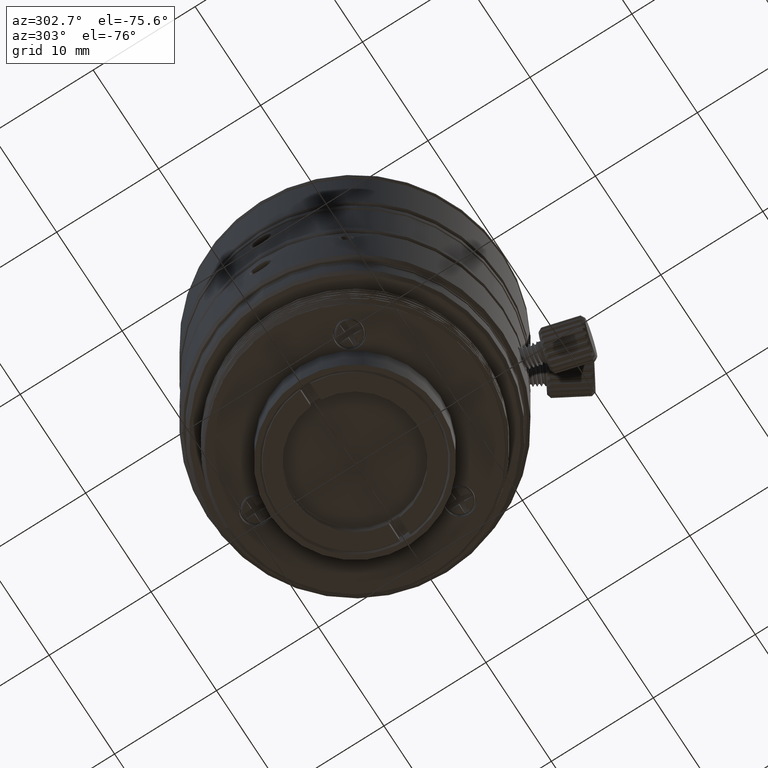
[diagram: clean part render]
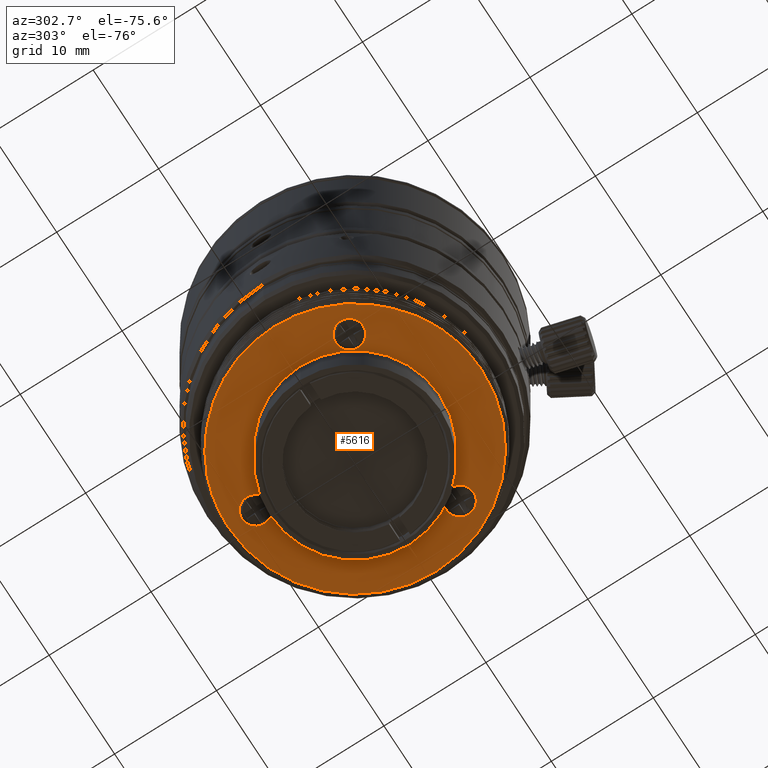
[diagram: same view with one face highlighted and labeled with its STEP entity id]
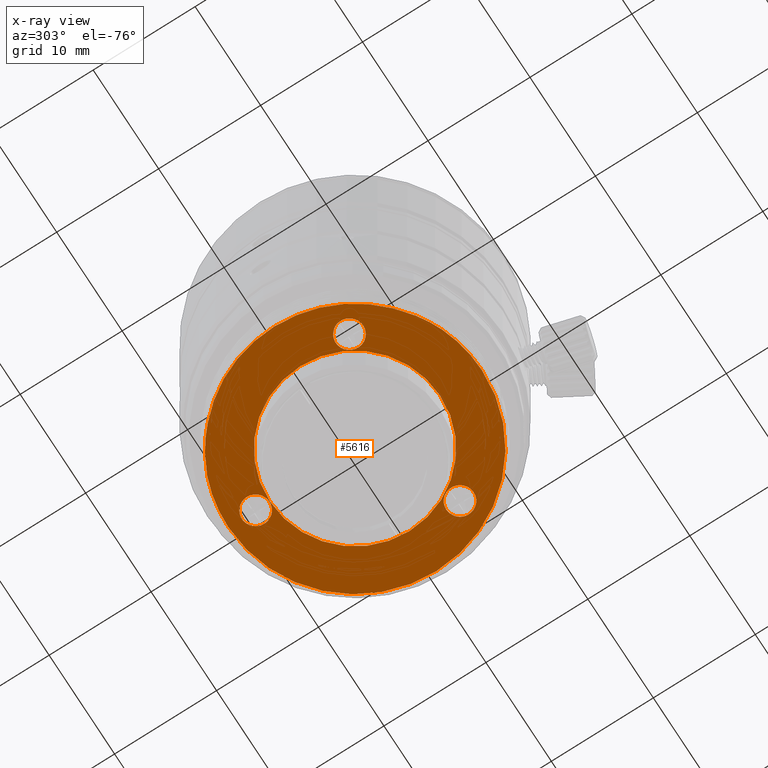
[diagram: x-ray of the same camera — body ghosted, the highlighted face saturated]
A machine part, auxiliary view. The second image highlights one B-rep face of the part: STEP entity #5616.
The next image is the same camera in x-ray: the body ghosted, the highlighted face saturated — about 0% of this face is hidden behind the body in this view.
In plain terms, the highlighted planar face has unit normal (0, 0, 1).
Its self-contained STEP definition (entity closure, byte-faithful):
#320 = DIRECTION ( 'NONE',  ( 0.5000000000000167644, 0.8660254037844289376, 0.000000000000000000 ) ) ;
#605 = ORIENTED_EDGE ( 'NONE', *, *, #18227, .F. ) ;
#644 = CIRCLE ( 'NONE', #19669, 12.42500000000000071 ) ;
#664 = ORIENTED_EDGE ( 'NONE', *, *, #10624, .F. ) ;
#704 = CARTESIAN_POINT ( 'NONE',  ( 8.443747686897999927, -4.875000000000000000, -1.500000018669999990 ) ) ;
#980 = CARTESIAN_POINT ( 'NONE',  ( 0.000000000000000000, 8.349999677741001491, -1.500000018669999990 ) ) ;
#1167 = VERTEX_POINT ( 'NONE', #10451 ) ;
#1225 = CARTESIAN_POINT ( 'NONE',  ( -1.521623647973570158E-15, -12.42500000026933371, -1.500000018669999990 ) ) ;
#1268 = CARTESIAN_POINT ( 'NONE',  ( 0.000000000000000000, 0.000000000000000000, -1.500000018669999990 ) ) ;
#1453 = DIRECTION ( 'NONE',  ( 0.000000000000000000, 0.000000000000000000, -1.000000000000000000 ) ) ;
#1475 = EDGE_CURVE ( 'NONE', #31185, #17797, #37323, .T. ) ;
#1562 = ORIENTED_EDGE ( 'NONE', *, *, #31170, .T. ) ;
#1649 = DIRECTION ( 'NONE',  ( 1.000000000000000000, 0.000000000000000000, 0.000000000000000000 ) ) ;
#2022 = DIRECTION ( 'NONE',  ( 0.000000000000000000, 0.000000000000000000, -1.000000000000000000 ) ) ;
#2361 = CARTESIAN_POINT ( 'NONE',  ( -6.009870152725436121, 10.94988895888564784, -1.500000018670001989 ) ) ;
#2370 = CARTESIAN_POINT ( 'NONE',  ( 0.000000000000000000, 9.750000000000000000, -1.500000018669999990 ) ) ;
#2601 = ORIENTED_EDGE ( 'NONE', *, *, #17564, .F. ) ;
#2766 = CARTESIAN_POINT ( 'NONE',  ( -6.004013329715740532, -10.95235141863349959, -1.500000018669999990 ) ) ;
#3667 = VERTEX_POINT ( 'NONE', #21168 ) ;
#3702 = FACE_BOUND ( 'NONE', #22171, .T. ) ;
#3742 = CARTESIAN_POINT ( 'NONE',  ( -4.625970705404580663, 11.53173967936930211, -1.500000018669999990 ) ) ;
#4352 = VERTEX_POINT ( 'NONE', #7866 ) ;
#4376 = EDGE_LOOP ( 'NONE', ( #31159, #27160 ) ) ;
#4531 = CIRCLE ( 'NONE', #31555, 1.350000000000000089 ) ;
#4985 = CARTESIAN_POINT ( 'NONE',  ( 0.000000000000000000, 9.750000000000000000, -1.500000018669999990 ) ) ;
#5035 = DIRECTION ( 'NONE',  ( 0.000000000000000000, 0.000000000000000000, -1.000000000000000000 ) ) ;
#5298 = CIRCLE ( 'NONE', #31756, 1.350000000000000311 ) ;
#5616 = ADVANCED_FACE ( 'NONE', ( #13084, #13282, #3702, #21196, #7318 ), #24822, .F. ) ;
#5652 = CARTESIAN_POINT ( 'NONE',  ( -4.625970705424220064, -11.53173967936130140, -1.500000018669999990 ) ) ;
#6004 = DIRECTION ( 'NONE',  ( 0.000000000000000000, 0.000000000000000000, -1.000000000000000000 ) ) ;
#6340 = CARTESIAN_POINT ( 'NONE',  ( -4.625970705424220064, -11.53173967936130140, -1.500000018669999990 ) ) ;
#6360 = CIRCLE ( 'NONE', #24795, 8.349999677741001491 ) ;
#6454 = DIRECTION ( 'NONE',  ( -1.000000000000000000, 0.000000000000000000, 0.000000000000000000 ) ) ;
#6518 = VERTEX_POINT ( 'NONE', #11552 ) ;
#7023 = CIRCLE ( 'NONE', #15529, 12.34999999999999964 ) ;
#7318 = FACE_OUTER_BOUND ( 'NONE', #18061, .T. ) ;
#7866 = CARTESIAN_POINT ( 'NONE',  ( 8.349999677741001491, 0.000000000000000000, -1.500000018669999990 ) ) ;
#8110 = VERTEX_POINT ( 'NONE', #9905 ) ;
#8216 = AXIS2_PLACEMENT_3D ( 'NONE', #10560, #33990, #16532 ) ;
#8368 = CIRCLE ( 'NONE', #18206, 1.350000000000000089 ) ;
#8520 = AXIS2_PLACEMENT_3D ( 'NONE', #22523, #5035, #28683 ) ;
#8996 = EDGE_CURVE ( 'NONE', #22974, #4352, #37160, .T. ) ;
#9171 = ORIENTED_EDGE ( 'NONE', *, *, #36121, .F. ) ;
#9865 = ORIENTED_EDGE ( 'NONE', *, *, #24117, .F. ) ;
#9905 = CARTESIAN_POINT ( 'NONE',  ( 0.000000000000000000, 12.42500000026933371, -1.500000018669999990 ) ) ;
#10451 = CARTESIAN_POINT ( 'NONE',  ( -9.118747686898021954, -3.705865704891020407, -1.500000018669999990 ) ) ;
#10560 = CARTESIAN_POINT ( 'NONE',  ( -8.443747686897999927, -4.875000000000000000, -1.500000018669999990 ) ) ;
#10624 = EDGE_CURVE ( 'NONE', #1167, #3667, #5298, .T. ) ;
#11252 = CARTESIAN_POINT ( 'NONE',  ( 8.443747686897999927, -4.875000000000000000, -1.500000018669999990 ) ) ;
#11427 = CARTESIAN_POINT ( 'NONE',  ( -7.277528754593929783, -10.11986897459639856, -1.500000018669999990 ) ) ;
#11537 = CARTESIAN_POINT ( 'NONE',  ( 0.000000000000000000, 0.000000000000000000, -1.500000018669999990 ) ) ;
#11552 = CARTESIAN_POINT ( 'NONE',  ( -1.350000000000000089, 9.750000000000000000, -1.500000018669999990 ) ) ;
#11671 = AXIS2_PLACEMENT_3D ( 'NONE', #704, #15136, #320 ) ;
#12181 = CARTESIAN_POINT ( 'NONE',  ( -8.363606865783218325, -9.086945592146809858, -1.500000018669999990 ) ) ;
#13084 = FACE_BOUND ( 'NONE', #34186, .T. ) ;
#13282 = FACE_BOUND ( 'NONE', #34232, .T. ) ;
#13856 = CIRCLE ( 'NONE', #37752, 1.350000000000000311 ) ;
#14081 = CARTESIAN_POINT ( 'NONE',  ( -7.282329570120652740, 10.11530312012851951, -1.500000018670001323 ) ) ;
#14332 = ORIENTED_EDGE ( 'NONE', *, *, #29731, .T. ) ;
#14378 = DIRECTION ( 'NONE',  ( 0.000000000000000000, 0.000000000000000000, -1.000000000000000000 ) ) ;
#14591 = VERTEX_POINT ( 'NONE', #32491 ) ;
#14855 = EDGE_CURVE ( 'NONE', #14591, #6518, #8368, .T. ) ;
#15136 = DIRECTION ( 'NONE',  ( 0.000000000000000000, 0.000000000000000000, -1.000000000000000000 ) ) ;
#15529 = AXIS2_PLACEMENT_3D ( 'NONE', #17187, #31374, #22551 ) ;
#15601 = DIRECTION ( 'NONE',  ( 1.000000000000000000, 0.000000000000000000, 0.000000000000000000 ) ) ;
#15846 = CARTESIAN_POINT ( 'NONE',  ( 0.000000000000000000, 0.000000000000000000, -1.500000018669999990 ) ) ;
#16532 = DIRECTION ( 'NONE',  ( 0.5000000000000167644, -0.8660254037844289376, 0.000000000000000000 ) ) ;
#17187 = CARTESIAN_POINT ( 'NONE',  ( 0.000000000000000000, 0.000000000000000000, -1.500000018669999990 ) ) ;
#17312 = CARTESIAN_POINT ( 'NONE',  ( 9.118747686898021954, -3.705865704891020851, -1.500000018669999990 ) ) ;
#17564 = EDGE_CURVE ( 'NONE', #30357, #17797, #35494, .T. ) ;
#17659 = DIRECTION ( 'NONE',  ( 0.5000000000000167644, -0.8660254037844289376, 0.000000000000000000 ) ) ;
#17797 = VERTEX_POINT ( 'NONE', #6340 ) ;
#18061 = EDGE_LOOP ( 'NONE', ( #9865, #18589, #33573, #21252, #2601, #1562, #14332 ) ) ;
#18206 = AXIS2_PLACEMENT_3D ( 'NONE', #4985, #22667, #31491 ) ;
#18227 = EDGE_CURVE ( 'NONE', #34898, #35324, #34360, .T. ) ;
#18317 = DIRECTION ( 'NONE',  ( 0.000000000000000000, 0.000000000000000000, -1.000000000000000000 ) ) ;
#18322 = CARTESIAN_POINT ( 'NONE',  ( -12.34999999999999964, 1.512438796946981289E-15, -1.500000018669999990 ) ) ;
#18489 = EDGE_CURVE ( 'NONE', #8110, #31185, #644, .T. ) ;
#18589 = ORIENTED_EDGE ( 'NONE', *, *, #35523, .T. ) ;
#19138 = CARTESIAN_POINT ( 'NONE',  ( 7.768747686897977012, -6.044134295108979593, -1.500000018669999990 ) ) ;
#19669 = AXIS2_PLACEMENT_3D ( 'NONE', #1268, #1453, #1649 ) ;
#19861 = DIRECTION ( 'NONE',  ( -1.000000000000000000, 0.000000000000000000, 0.000000000000000000 ) ) ;
#20598 = AXIS2_PLACEMENT_3D ( 'NONE', #11537, #32067, #35698 ) ;
#21168 = CARTESIAN_POINT ( 'NONE',  ( -7.768747686897977012, -6.044134295108979593, -1.500000018669999990 ) ) ;
#21196 = FACE_BOUND ( 'NONE', #4376, .T. ) ;
#21252 = ORIENTED_EDGE ( 'NONE', *, *, #1475, .T. ) ;
#22171 = EDGE_LOOP ( 'NONE', ( #605, #9171 ) ) ;
#22523 = CARTESIAN_POINT ( 'NONE',  ( 0.000000000000000000, 0.000000000000000000, -1.500000018669999990 ) ) ;
#22529 = ORIENTED_EDGE ( 'NONE', *, *, #26989, .F. ) ;
#22551 = DIRECTION ( 'NONE',  ( 1.000000000000000000, 0.000000000000000000, 0.000000000000000000 ) ) ;
#22667 = DIRECTION ( 'NONE',  ( 0.000000000000000000, 0.000000000000000000, -1.000000000000000000 ) ) ;
#22704 = DIRECTION ( 'NONE',  ( 1.000000000000000000, 0.000000000000000000, 0.000000000000000000 ) ) ;
#22974 = VERTEX_POINT ( 'NONE', #32303 ) ;
#23032 = CARTESIAN_POINT ( 'NONE',  ( -8.443747686897999927, -4.875000000000000000, -1.500000018669999990 ) ) ;
#23582 = CIRCLE ( 'NONE', #8216, 1.350000000000000311 ) ;
#24117 = EDGE_CURVE ( 'NONE', #29260, #36332, #25316, .T. ) ;
#24291 = EDGE_CURVE ( 'NONE', #4352, #22974, #6360, .T. ) ;
#24795 = AXIS2_PLACEMENT_3D ( 'NONE', #33237, #18317, #29816 ) ;
#24822 = PLANE ( 'NONE',  #27457 ) ;
#25070 = EDGE_CURVE ( 'NONE', #6518, #14591, #4531, .T. ) ;
#25316 = B_SPLINE_CURVE_WITH_KNOTS ( 'NONE', 3,
 ( #25820, #2361, #14081, #34612 ),
 .UNSPECIFIED., .F., .F.,
 ( 4, 4 ),
 ( 0.000000000000000000, 1.000000000000000000 ),
 .UNSPECIFIED. ) ;
#25820 = CARTESIAN_POINT ( 'NONE',  ( -4.625970705404580663, 11.53173967936930211, -1.500000018669999990 ) ) ;
#26824 = VERTEX_POINT ( 'NONE', #18322 ) ;
#26989 = EDGE_CURVE ( 'NONE', #3667, #1167, #23582, .T. ) ;
#27160 = ORIENTED_EDGE ( 'NONE', *, *, #25070, .F. ) ;
#27457 = AXIS2_PLACEMENT_3D ( 'NONE', #980, #36497, #15601 ) ;
#27570 = DIRECTION ( 'NONE',  ( 0.000000000000000000, 0.000000000000000000, -1.000000000000000000 ) ) ;
#27879 = AXIS2_PLACEMENT_3D ( 'NONE', #15846, #27570, #22704 ) ;
#28551 = DIRECTION ( 'NONE',  ( 0.5000000000000167644, 0.8660254037844289376, 0.000000000000000000 ) ) ;
#28683 = DIRECTION ( 'NONE',  ( 1.000000000000000000, 0.000000000000000000, 0.000000000000000000 ) ) ;
#29074 = ORIENTED_EDGE ( 'NONE', *, *, #8996, .F. ) ;
#29260 = VERTEX_POINT ( 'NONE', #3742 ) ;
#29731 = EDGE_CURVE ( 'NONE', #26824, #36332, #7023, .T. ) ;
#29763 = CIRCLE ( 'NONE', #20598, 12.42500000000000071 ) ;
#29816 = DIRECTION ( 'NONE',  ( -1.000000000000000000, 0.000000000000000000, 0.000000000000000000 ) ) ;
#30085 = DIRECTION ( 'NONE',  ( 0.000000000000000000, 0.000000000000000000, -1.000000000000000000 ) ) ;
#30357 = VERTEX_POINT ( 'NONE', #35908 ) ;
#31159 = ORIENTED_EDGE ( 'NONE', *, *, #14855, .F. ) ;
#31170 = EDGE_CURVE ( 'NONE', #30357, #26824, #32141, .T. ) ;
#31185 = VERTEX_POINT ( 'NONE', #1225 ) ;
#31374 = DIRECTION ( 'NONE',  ( 0.000000000000000000, 0.000000000000000000, -1.000000000000000000 ) ) ;
#31491 = DIRECTION ( 'NONE',  ( -1.000000000000000000, 0.000000000000000000, 0.000000000000000000 ) ) ;
#31555 = AXIS2_PLACEMENT_3D ( 'NONE', #2370, #6004, #19861 ) ;
#31756 = AXIS2_PLACEMENT_3D ( 'NONE', #23032, #14378, #17659 ) ;
#32067 = DIRECTION ( 'NONE',  ( 0.000000000000000000, 0.000000000000000000, -1.000000000000000000 ) ) ;
#32132 = CARTESIAN_POINT ( 'NONE',  ( -8.363606865847119209, 9.086945592087040779, -1.500000018669999990 ) ) ;
#32141 = CIRCLE ( 'NONE', #27879, 12.34999999999999964 ) ;
#32303 = CARTESIAN_POINT ( 'NONE',  ( -8.349999677741001491, 1.022580037822694731E-15, -1.500000018669999990 ) ) ;
#32491 = CARTESIAN_POINT ( 'NONE',  ( 1.350000000000000089, 9.750000000000000000, -1.500000018669999990 ) ) ;
#32753 = ORIENTED_EDGE ( 'NONE', *, *, #24291, .F. ) ;
#32766 = CARTESIAN_POINT ( 'NONE',  ( 0.000000000000000000, 0.000000000000000000, -1.500000018669999990 ) ) ;
#33237 = CARTESIAN_POINT ( 'NONE',  ( 0.000000000000000000, 0.000000000000000000, -1.500000018669999990 ) ) ;
#33573 = ORIENTED_EDGE ( 'NONE', *, *, #18489, .T. ) ;
#33990 = DIRECTION ( 'NONE',  ( 0.000000000000000000, 0.000000000000000000, -1.000000000000000000 ) ) ;
#34186 = EDGE_LOOP ( 'NONE', ( #32753, #29074 ) ) ;
#34232 = EDGE_LOOP ( 'NONE', ( #664, #22529 ) ) ;
#34360 = CIRCLE ( 'NONE', #11671, 1.350000000000000311 ) ;
#34612 = CARTESIAN_POINT ( 'NONE',  ( -8.363606865847119209, 9.086945592087040779, -1.500000018669999990 ) ) ;
#34898 = VERTEX_POINT ( 'NONE', #19138 ) ;
#35324 = VERTEX_POINT ( 'NONE', #17312 ) ;
#35494 = B_SPLINE_CURVE_WITH_KNOTS ( 'NONE', 3,
 ( #12181, #11427, #2766, #5652 ),
 .UNSPECIFIED., .F., .F.,
 ( 4, 4 ),
 ( 0.000000000000000000, 1.000000000000000000 ),
 .UNSPECIFIED. ) ;
#35523 = EDGE_CURVE ( 'NONE', #29260, #8110, #29763, .T. ) ;
#35698 = DIRECTION ( 'NONE',  ( 1.000000000000000000, 0.000000000000000000, 0.000000000000000000 ) ) ;
#35908 = CARTESIAN_POINT ( 'NONE',  ( -8.363606865783218325, -9.086945592146809858, -1.500000018669999990 ) ) ;
#36121 = EDGE_CURVE ( 'NONE', #35324, #34898, #13856, .T. ) ;
#36332 = VERTEX_POINT ( 'NONE', #32132 ) ;
#36497 = DIRECTION ( 'NONE',  ( 0.000000000000000000, 0.000000000000000000, 1.000000000000000000 ) ) ;
#36557 = AXIS2_PLACEMENT_3D ( 'NONE', #32766, #30085, #6454 ) ;
#37160 = CIRCLE ( 'NONE', #36557, 8.349999677741001491 ) ;
#37323 = CIRCLE ( 'NONE', #8520, 12.42500000000000071 ) ;
#37752 = AXIS2_PLACEMENT_3D ( 'NONE', #11252, #2022, #28551 ) ;